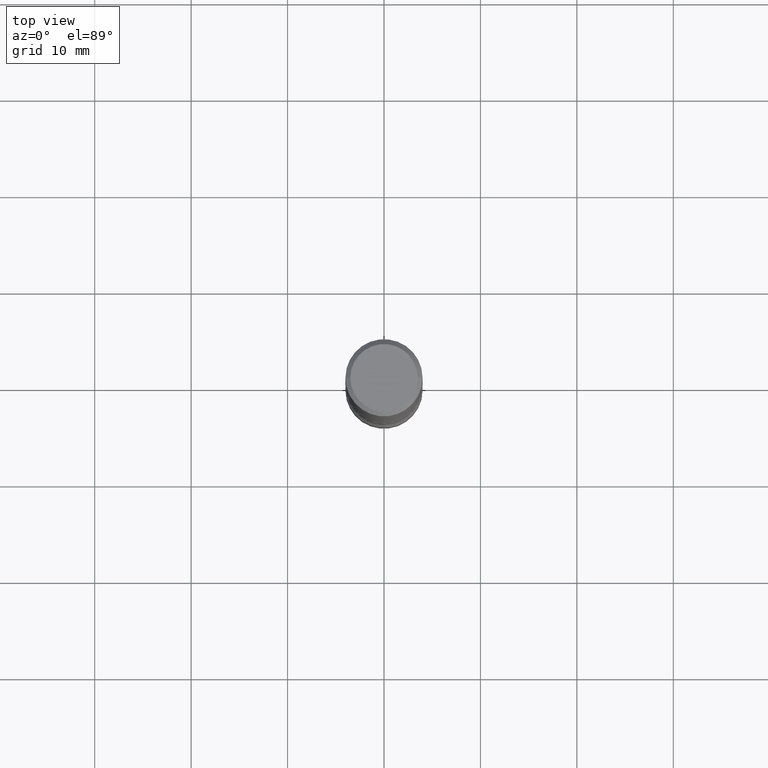
[diagram: clean part render]
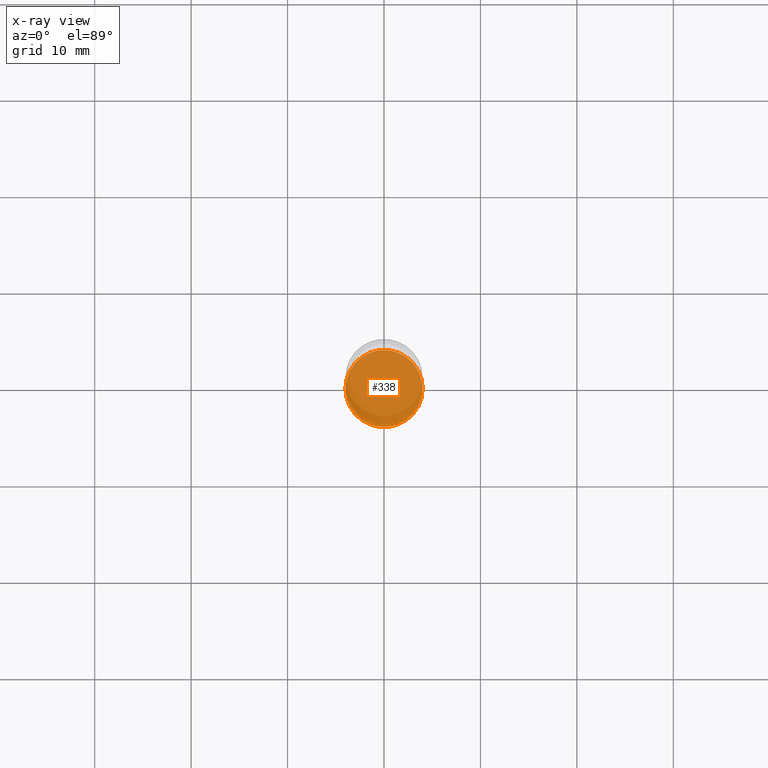
[diagram: x-ray — body ghosted, one internal face saturated and labeled with its STEP entity id]
A machine part, top view, then the same camera in x-ray: the body is ghosted and one INTERNAL B-rep face — a face not visible from any outside direction — is saturated and labeled: STEP entity #338.
In plain terms, the highlighted planar face has unit normal (0, -0, -1).
Its self-contained STEP definition (entity closure, byte-faithful):
#1 = FACE_OUTER_BOUND ( 'NONE', #257, .T. ) ;
#9 = AXIS2_PLACEMENT_3D ( 'NONE', #160, #38, #344 ) ;
#38 = DIRECTION ( 'NONE',  ( -2.445468806185136597E-29, 3.491481338843145583E-15, 1.000000000000000000 ) ) ;
#51 = CARTESIAN_POINT ( 'NONE',  ( 0.1575000000000001954, -1.003486651596908046E-14, -2.559099999999999486 ) ) ;
#75 = AXIS2_PLACEMENT_3D ( 'NONE', #264, #447, #117 ) ;
#95 = CARTESIAN_POINT ( 'NONE',  ( -0.1575000000000001954, -8.468852095775002161E-15, -2.559099999999999486 ) ) ;
#117 = DIRECTION ( 'NONE',  ( -1.000000000000000000, 6.982962677686265922E-15, -4.876176775795935793E-29 ) ) ;
#160 = CARTESIAN_POINT ( 'NONE',  ( 6.258199221908381703E-29, -8.935049894233492186E-15, -2.559099999999999486 ) ) ;
#205 = EDGE_CURVE ( 'NONE', #528, #305, #283, .T. ) ;
#257 = EDGE_LOOP ( 'NONE', ( #467, #466 ) ) ;
#264 = CARTESIAN_POINT ( 'NONE',  ( 6.258199221908381703E-29, -8.935049894233492186E-15, -2.559099999999999486 ) ) ;
#268 = CARTESIAN_POINT ( 'NONE',  ( 6.258199221908381703E-29, -8.935049894233492186E-15, -2.559099999999999486 ) ) ;
#283 = CIRCLE ( 'NONE', #9, 0.1575000000000001954 ) ;
#305 = VERTEX_POINT ( 'NONE', #51 ) ;
#309 = PLANE ( 'NONE',  #75 ) ;
#338 = ADVANCED_FACE ( 'NONE', ( #1 ), #309, .F. ) ;
#344 = DIRECTION ( 'NONE',  ( 1.000000000000000000, -6.982962677686265922E-15, 0.000000000000000000 ) ) ;
#398 = AXIS2_PLACEMENT_3D ( 'NONE', #268, #450, #427 ) ;
#427 = DIRECTION ( 'NONE',  ( 1.000000000000000000, -6.982962677686265922E-15, 0.000000000000000000 ) ) ;
#447 = DIRECTION ( 'NONE',  ( 2.438088387897960049E-29, -3.491481338843145188E-15, -1.000000000000000000 ) ) ;
#450 = DIRECTION ( 'NONE',  ( -2.445468806185136597E-29, 3.491481338843145583E-15, 1.000000000000000000 ) ) ;
#453 = EDGE_CURVE ( 'NONE', #305, #528, #459, .T. ) ;
#459 = CIRCLE ( 'NONE', #398, 0.1575000000000001954 ) ;
#466 = ORIENTED_EDGE ( 'NONE', *, *, #205, .T. ) ;
#467 = ORIENTED_EDGE ( 'NONE', *, *, #453, .T. ) ;
#528 = VERTEX_POINT ( 'NONE', #95 ) ;